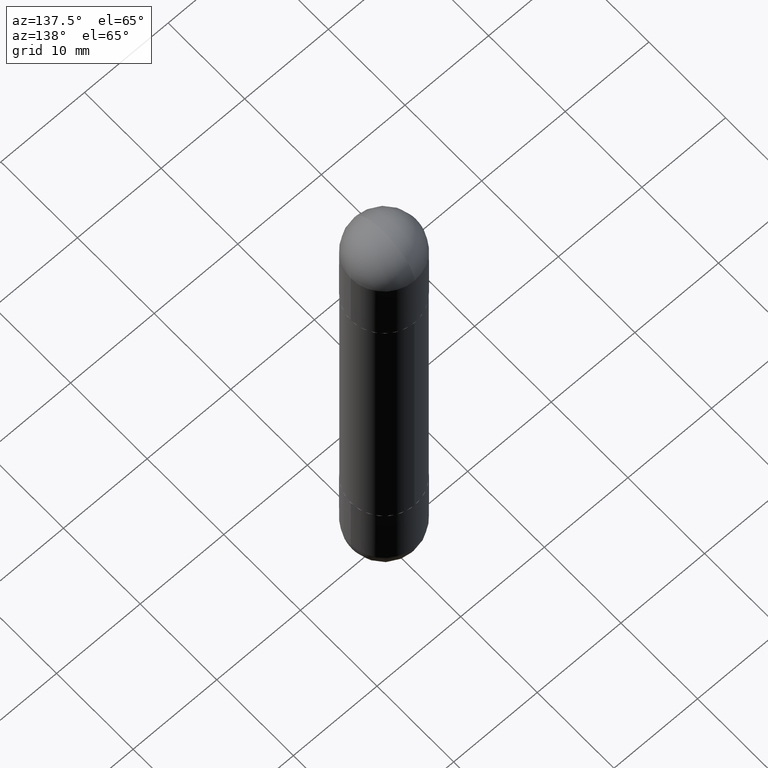
[diagram: clean part render]
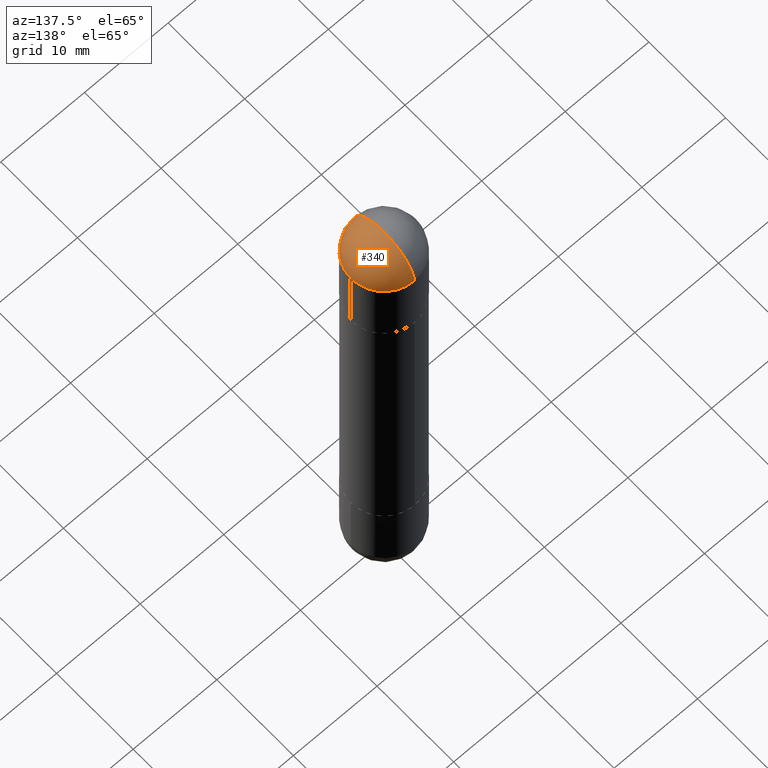
[diagram: same view with one face highlighted and labeled with its STEP entity id]
A machine part, auxiliary view. The second image highlights one B-rep face of the part: STEP entity #340.
In plain terms, the highlighted spherical surface has radius 3.9688 mm.
Its self-contained STEP definition (entity closure, byte-faithful):
#3 = VERTEX_POINT ( 'NONE', #161 ) ;
#5 = DIRECTION ( 'NONE',  ( 1.000000000000000000, -6.982962677686262766E-15, 0.000000000000000000 ) ) ;
#44 = CIRCLE ( 'NONE', #682, 0.1562500000000000000 ) ;
#74 = CARTESIAN_POINT ( 'NONE',  ( 5.400447736582527652E-29, -8.657341756053672891E-15, -0.1562500000000005551 ) ) ;
#78 = DIRECTION ( 'NONE',  ( 1.000000000000000000, -6.982962677686265922E-15, -4.883557194083112340E-29 ) ) ;
#84 = DIRECTION ( 'NONE',  ( -6.982962677686265922E-15, -1.000000000000000000, 0.000000000000000000 ) ) ;
#85 = VERTEX_POINT ( 'NONE', #803 ) ;
#88 = DIRECTION ( 'NONE',  ( 1.000000000000000000, -6.982962677686262766E-15, 0.000000000000000000 ) ) ;
#95 = AXIS2_PLACEMENT_3D ( 'NONE', #562, #717, #88 ) ;
#161 = CARTESIAN_POINT ( 'NONE',  ( 0.1562500000000000000, -8.674148951188436448E-15, -0.1562500000000005551 ) ) ;
#162 = AXIS2_PLACEMENT_3D ( 'NONE', #514, #317, #84 ) ;
#185 = CARTESIAN_POINT ( 'NONE',  ( -1.071952812151746981E-15, -0.1562500000000085487, -0.1562500000000011102 ) ) ;
#189 = DIRECTION ( 'NONE',  ( 1.000000000000000000, -6.860497997771530774E-15, -4.840798879624142912E-29 ) ) ;
#237 = CIRCLE ( 'NONE', #596, 0.1562500000000002498 ) ;
#250 = EDGE_CURVE ( 'NONE', #272, #85, #508, .T. ) ;
#272 = VERTEX_POINT ( 'NONE', #566 ) ;
#291 = EDGE_CURVE ( 'NONE', #3, #85, #44, .T. ) ;
#317 = DIRECTION ( 'NONE',  ( -1.000000000000000000, 6.982962677686265922E-15, 4.883557194083112340E-29 ) ) ;
#320 = FACE_OUTER_BOUND ( 'NONE', #662, .T. ) ;
#329 = DIRECTION ( 'NONE',  ( 2.445468806185136597E-29, -3.491481338843145583E-15, 1.000000000000000000 ) ) ;
#330 = ORIENTED_EDGE ( 'NONE', *, *, #250, .F. ) ;
#339 = ORIENTED_EDGE ( 'NONE', *, *, #727, .T. ) ;
#340 = ADVANCED_FACE ( 'NONE', ( #320 ), #622, .T. ) ;
#398 = EDGE_CURVE ( 'NONE', #642, #3, #470, .T. ) ;
#431 = DIRECTION ( 'NONE',  ( 6.860497997771530774E-15, 1.000000000000000000, 0.000000000000000000 ) ) ;
#451 = ORIENTED_EDGE ( 'NONE', *, *, #291, .T. ) ;
#469 = ORIENTED_EDGE ( 'NONE', *, *, #398, .T. ) ;
#470 = CIRCLE ( 'NONE', #95, 0.1562500000000000000 ) ;
#483 = AXIS2_PLACEMENT_3D ( 'NONE', #74, #78, #760 ) ;
#488 = CARTESIAN_POINT ( 'NONE',  ( 5.400447736582527652E-29, -8.657341756053672891E-15, -0.1562500000000005551 ) ) ;
#508 = CIRCLE ( 'NONE', #162, 0.1562500000000002498 ) ;
#514 = CARTESIAN_POINT ( 'NONE',  ( 5.400447736582527652E-29, -8.657341756053672891E-15, -0.1562500000000005551 ) ) ;
#562 = CARTESIAN_POINT ( 'NONE',  ( 5.731567514496413899E-29, -8.183159387913622595E-15, -0.1562500000000005551 ) ) ;
#566 = CARTESIAN_POINT ( 'NONE',  ( 5.789233224183170584E-29, -9.193318162129576161E-15, -3.073328992872296367E-16 ) ) ;
#596 = AXIS2_PLACEMENT_3D ( 'NONE', #488, #189, #431 ) ;
#622 = SPHERICAL_SURFACE ( 'NONE', #483, 0.1562500000000002498 ) ;
#642 = VERTEX_POINT ( 'NONE', #185 ) ;
#662 = EDGE_LOOP ( 'NONE', ( #330, #339, #469, #451 ) ) ;
#682 = AXIS2_PLACEMENT_3D ( 'NONE', #697, #329, #5 ) ;
#697 = CARTESIAN_POINT ( 'NONE',  ( 5.731567514496413899E-29, -8.183159387913622595E-15, -0.1562500000000005551 ) ) ;
#717 = DIRECTION ( 'NONE',  ( 2.445468806185136597E-29, -3.491481338843145583E-15, 1.000000000000000000 ) ) ;
#727 = EDGE_CURVE ( 'NONE', #272, #642, #237, .T. ) ;
#760 = DIRECTION ( 'NONE',  ( 6.982962677686265922E-15, 1.000000000000000000, 3.496765431890251398E-15 ) ) ;
#803 = CARTESIAN_POINT ( 'NONE',  ( 1.091087918388535577E-15, 0.1562499999999916733, -0.1562500000000000000 ) ) ;